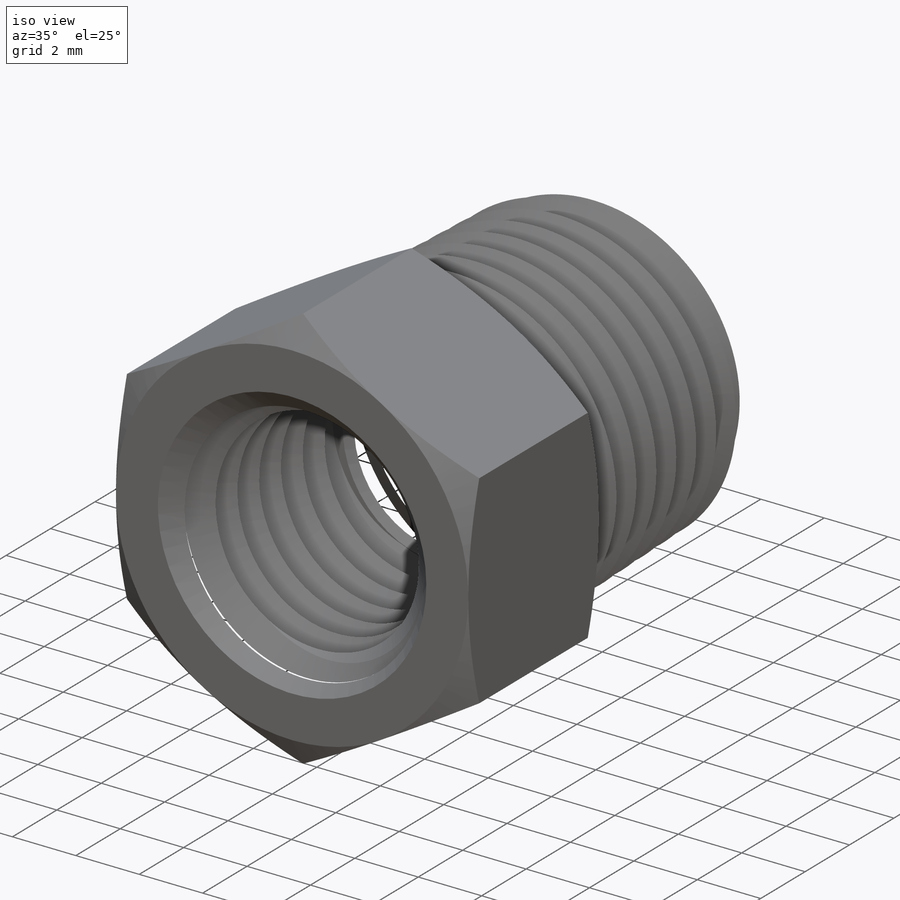
[diagram: iso view]
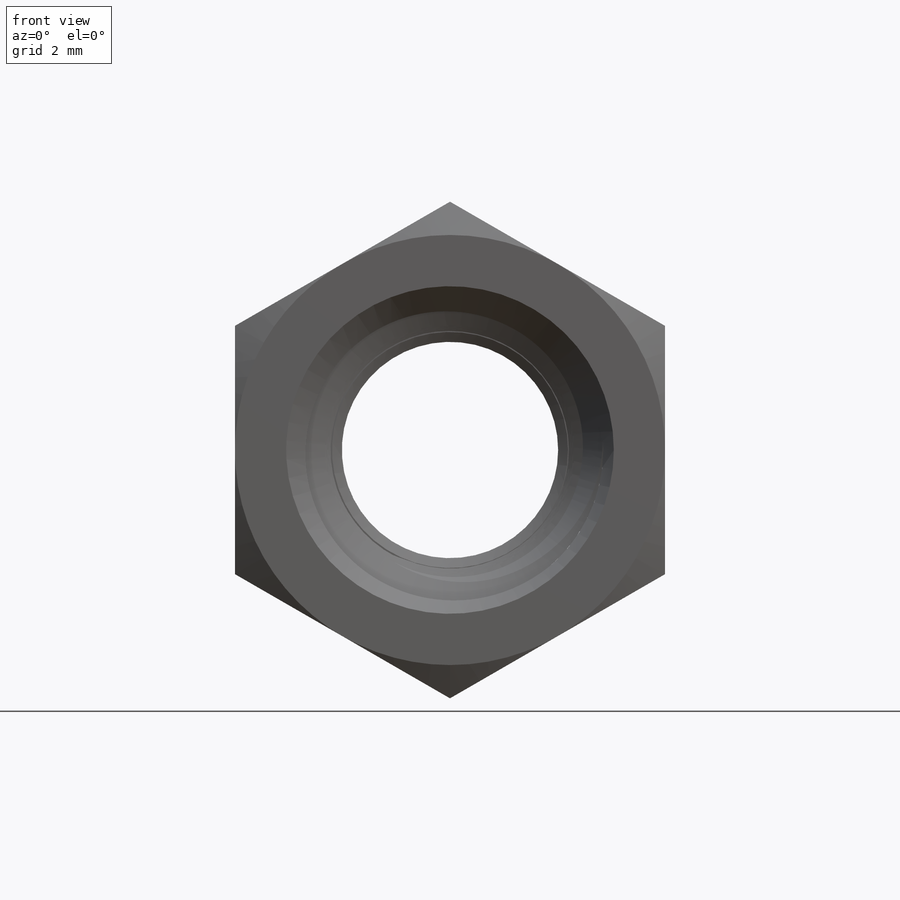
[diagram: front view]
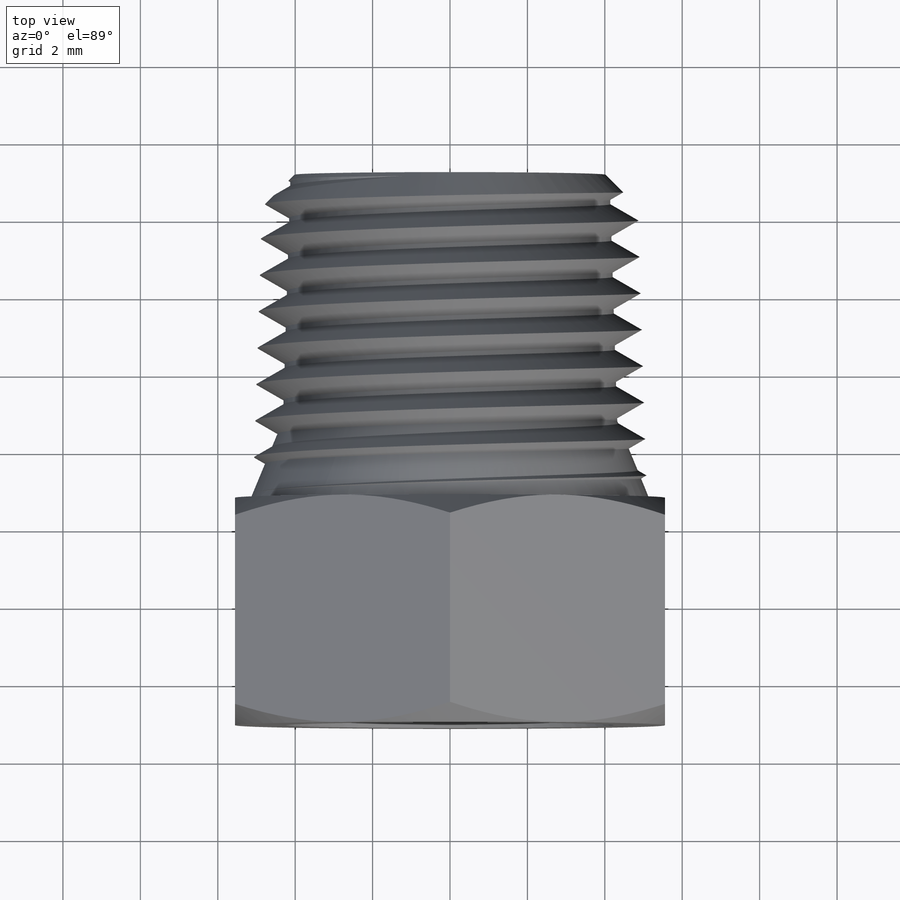
[diagram: top view]
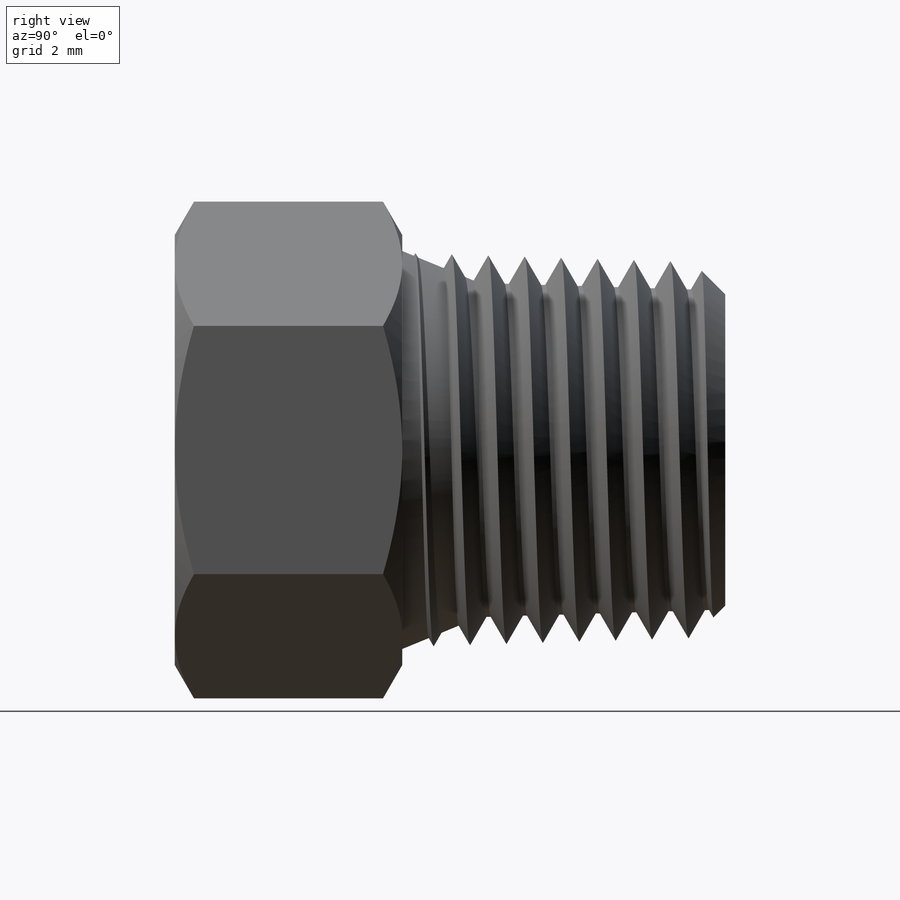
[diagram: right view]
SOLIDWORKS PART (.sldprt)
format: sldprt  version: not decoded by parser v0  size: 1,491,456 bytes
history: native  units: mm
features: sketch x15, extrude x6, cut_extrude x3, helix x2, sweep x2, material x1, plane x1, cut_revolve x1 (+13 scaffold rows collapsed)
feature tree (44):
  scaffold x13  (default folders/planes/origin — collapsed)
  material  "Plain Carbon Steel"
  sketch  "Sketch1"  dims[c1.Length=14.224mm c1.Male Thread Length=13.462mm c1.D1=~3.96875mm c1.D2=~9.45515mm c1.TE=10.287mm c2.Male Thread Length=~9.89584mm c2.FemaleThread Length=~6.63194mm c2.Male Pipe OD=10.287mm c2.Hex=11.1125mm c2.Male Pipe ID=5.588mm c2.Female Pipe OD=7.9375mm c2.Hex Length=~2.778125mm]
  plane  "Plane1"
  sketch  "Sketch2"  dims[od=21.336mm]
  extrude  "Extrude1"  [1 undecoded]
  sketch  "Sketch3"
  helix  "Helix/Spiral2"  Pitch=10.836581mm Male Length=10.836581mm Male Pitch=0.940741mm
  sketch  "Sketch4"  dims[c1.D1=~1.740284mm c1.A=60.0deg c2.D1=~0.47037mm c2.D2=~0.117593mm c2.D3=~2.822222mm]
  sweep  "Cut-Sweep1"
  sketch  "Sketch5"
  cut_extrude  "Extrude2"  [1 undecoded]
  sketch  "Sketch6"  dims[Hex=23.8125mm]
  extrude  "Extrude3"  [1 undecoded]
  sketch  "Sketch7"  dims[D1=0.0mm]
  extrude  "Extrude4"  [1 undecoded]
  sketch  "Sketch8"
  cut_extrude  "Cut-Extrude1"  [1 undecoded]
  sketch  "Sketch9"
  extrude  "Cut-Extrude2"  [1 undecoded]
  sketch  "Sketch10"  dims[D1=0.0mm]
  extrude  "Extrude5"  [1 undecoded]
  sketch  "Sketch11"  dims[D1=0.0mm]
  helix  "Helix/Spiral1"  Pitch=8.513421mm Length=8.513421mm Female Pitch=0.940741mm
  sketch  "Sketch12"  dims[c1.D1=~0.226786mm c1.D2=~0.907143mm c1.D3=~9.482972mm c2.D3=60.0deg c2.D4=1.3335mm c3.D4=10.0deg c4.D4=~1.932609mm c5.D4=10.0deg c5.D1=~3.028099mm c5.A=60.0deg c6.D1=~0.47037mm c6.D2=~0.117593mm]
  sweep  "Sweep1"
  sketch  "Sketch13"  dims[D1=0.0mm D2=~0.47037mm]
  cut_extrude  "Extrude6"  [1 undecoded]
  sketch  "Sketch14"  dims[D1=0.127mm]
  extrude  "Extrude7"  Depth=6.35mm
  sketch  "Sketch15"  dims[D1=~10.715625mm D2=1.016mm]
  cut_revolve  "Cut-Revolve1"  Angle=360deg
decode coverage: 15 of 29 modeling features carry decoded parameters
note: ~ marks probable driven/reference dimensions
note: 8 parameter values undecoded
summary: no parameter record found for 8 features
note: suppression state not decoded; provenance and decode notes live in map.json
